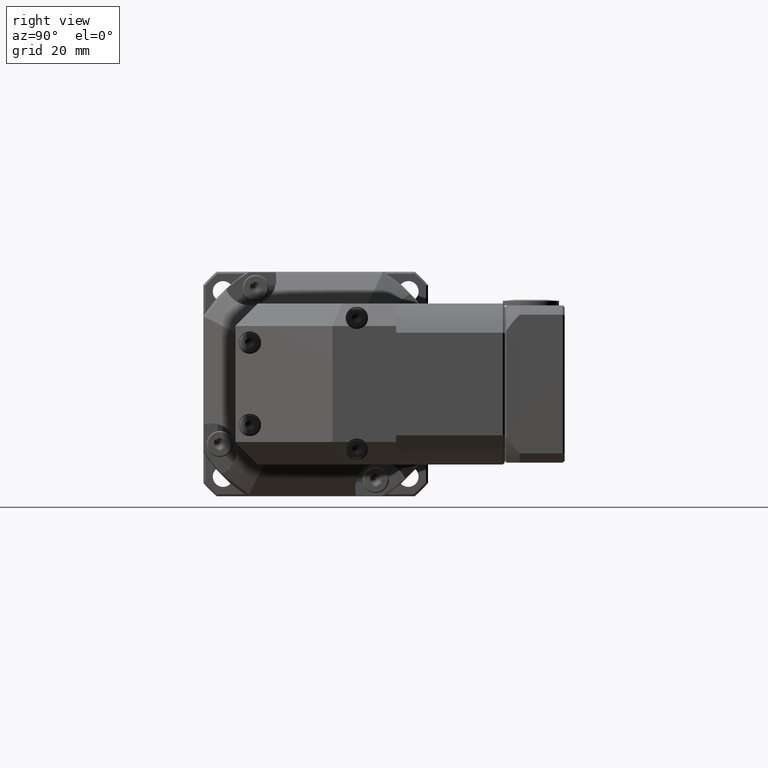
[diagram: clean part render]
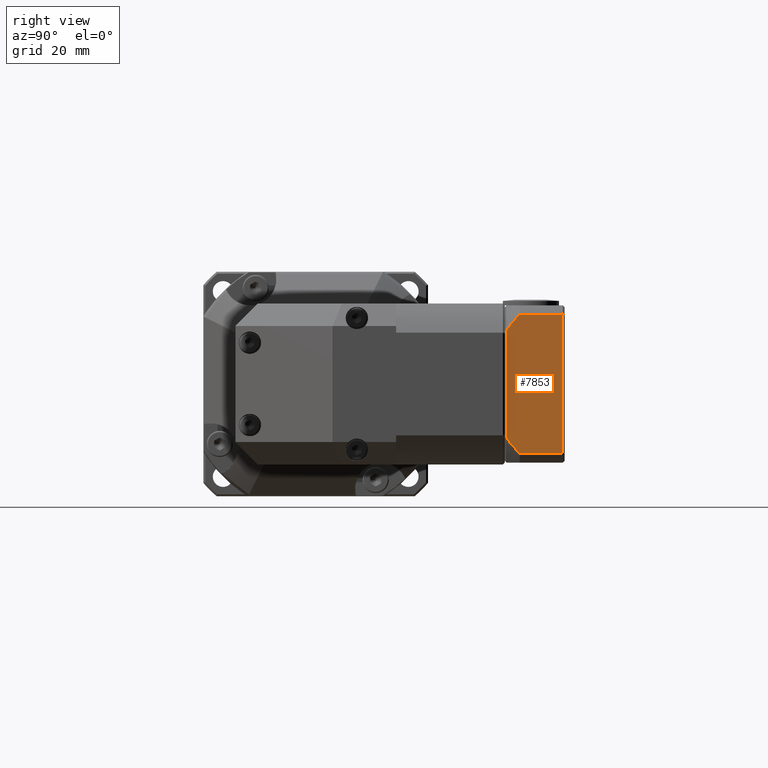
[diagram: same view with one face highlighted and labeled with its STEP entity id]
A machine part, right view. The second image highlights one B-rep face of the part: STEP entity #7853.
In plain terms, the highlighted planar face has unit normal (1, 0, 0).
Its self-contained STEP definition (entity closure, byte-faithful):
#732=LINE('',#13690,#1127);
#741=LINE('',#13732,#1136);
#742=LINE('',#13735,#1137);
#743=LINE('',#13736,#1138);
#1127=VECTOR('',#10563,28.6829409231341);
#1136=VECTOR('',#10594,11.5014761628236);
#1137=VECTOR('',#10597,37.0405183549043);
#1138=VECTOR('',#10598,11.5014761628236);
#1397=PLANE('',#8701);
#2070=FACE_OUTER_BOUND('',#2743,.T.);
#2743=EDGE_LOOP('',(#6611,#6612,#6613,#6614,#6615,#6616));
#3213=CIRCLE('',#8677,25.740404037233);
#3217=CIRCLE('',#8682,25.740404037233);
#3844=VERTEX_POINT('',#13644);
#3846=VERTEX_POINT('',#13649);
#3850=VERTEX_POINT('',#13658);
#3851=VERTEX_POINT('',#13660);
#3862=VERTEX_POINT('',#13730);
#3863=VERTEX_POINT('',#13734);
#4787=EDGE_CURVE('',#3844,#3846,#3213,.T.);
#4791=EDGE_CURVE('',#3851,#3850,#3217,.T.);
#4799=EDGE_CURVE('',#3844,#3850,#732,.T.);
#4816=EDGE_CURVE('',#3862,#3851,#741,.T.);
#4817=EDGE_CURVE('',#3862,#3863,#742,.T.);
#4818=EDGE_CURVE('',#3846,#3863,#743,.T.);
#6611=ORIENTED_EDGE('',*,*,#4817,.F.);
#6612=ORIENTED_EDGE('',*,*,#4816,.T.);
#6613=ORIENTED_EDGE('',*,*,#4791,.T.);
#6614=ORIENTED_EDGE('',*,*,#4799,.F.);
#6615=ORIENTED_EDGE('',*,*,#4787,.T.);
#6616=ORIENTED_EDGE('',*,*,#4818,.T.);
#7853=ADVANCED_FACE('',(#2070),#1397,.T.);
#8677=AXIS2_PLACEMENT_3D('',#13651,#10537,#10538);
#8682=AXIS2_PLACEMENT_3D('',#13661,#10547,#10548);
#8701=AXIS2_PLACEMENT_3D('',#13733,#10595,#10596);
#10537=DIRECTION('center_axis',(1.,1.18877346301403E-15,9.78595511503228E-14));
#10538=DIRECTION('ref_axis',(-9.78595511503228E-14,1.62888051059811E-15,
1.));
#10547=DIRECTION('center_axis',(1.,1.18877346301403E-15,9.78595511503228E-14));
#10548=DIRECTION('ref_axis',(-9.78595511503228E-14,1.62888051059811E-15,
1.));
#10563=DIRECTION('',(-9.78595511503228E-14,1.62888051059811E-15,1.));
#10594=DIRECTION('',(1.18877346301387E-15,-1.,1.62888051059823E-15));
#10595=DIRECTION('center_axis',(1.,1.18877346301403E-15,9.78595511503228E-14));
#10596=DIRECTION('ref_axis',(-9.76996261670138E-14,1.4210854715202E-15,
1.));
#10597=DIRECTION('',(9.78595511503228E-14,-1.62888051059811E-15,-1.));
#10598=DIRECTION('',(-1.18877346301387E-15,1.,-1.62888051059823E-15));
#13644=CARTESIAN_POINT('',(18.5957640055221,69.2695502360649,-58.5163572742319));
#13649=CARTESIAN_POINT('',(18.5957640055225,72.7680740732413,-62.695145990117));
#13651=CARTESIAN_POINT('Origin',(18.5957640055207,90.6445502360649,-44.1748868126649));
#13658=CARTESIAN_POINT('',(18.5957640055193,69.2695502360649,-29.8334163510978));
#13660=CARTESIAN_POINT('',(18.5957640055189,72.7680740732414,-25.6546276352127));
#13661=CARTESIAN_POINT('Origin',(18.5957640055207,90.6445502360649,-44.1748868126649));
#13690=CARTESIAN_POINT('',(18.5957640055217,69.2695502360649,-54.6748868126648));
#13730=CARTESIAN_POINT('',(18.5957640055189,84.269550236065,-25.6546276352127));
#13732=CARTESIAN_POINT('',(18.5957640055189,84.7695502360649,-25.6546276352127));
#13733=CARTESIAN_POINT('Origin',(18.5957640055227,84.7695502360649,-65.1748868126649));
#13734=CARTESIAN_POINT('',(18.5957640055225,84.2695502360649,-62.695145990117));
#13735=CARTESIAN_POINT('',(18.5957640055217,84.2695502360649,-54.6748868126649));
#13736=CARTESIAN_POINT('',(18.5957640055225,84.7695502360649,-62.695145990117));